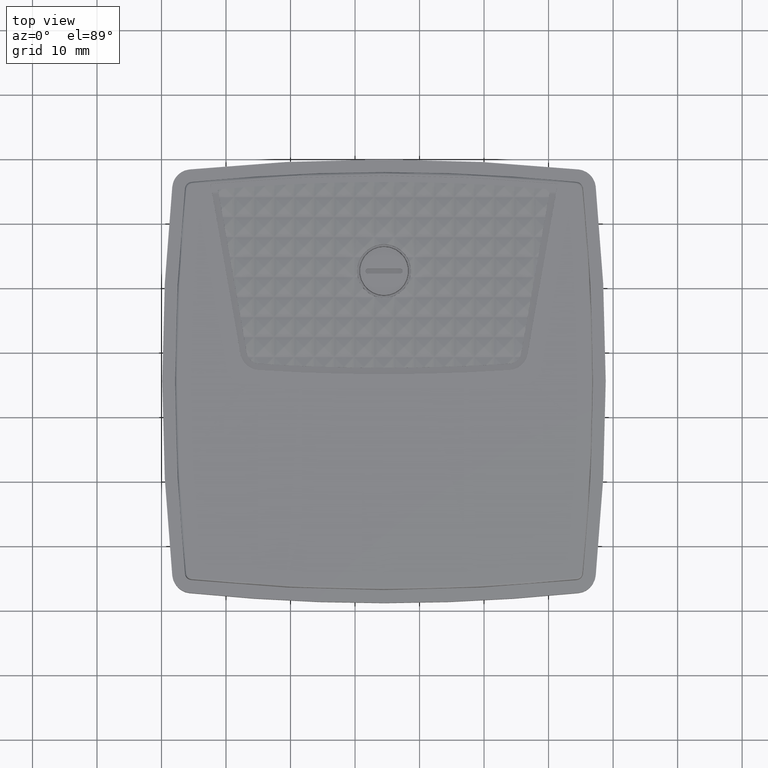
[diagram: clean part render]
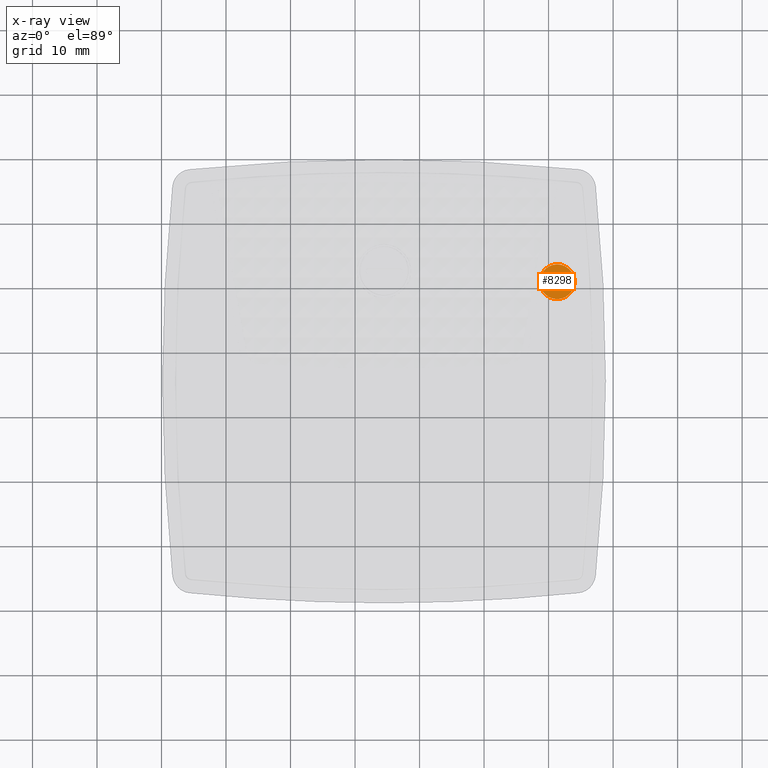
[diagram: x-ray — body ghosted, one internal face saturated and labeled with its STEP entity id]
A machine part, top view, then the same camera in x-ray: the body is ghosted and one INTERNAL B-rep face — a face not visible from any outside direction — is saturated and labeled: STEP entity #8298.
In plain terms, the highlighted planar face has unit normal (0, 0, 1).
Its self-contained STEP definition (entity closure, byte-faithful):
#4712 = DIRECTION ( 'NONE',  ( 0.000000000000000000, 1.000000000000000000, 0.000000000000000000 ) ) ;
#5304 = AXIS2_PLACEMENT_3D ( 'NONE', #12052, #8392, #4712 ) ;
#7202 = EDGE_CURVE ( 'NONE', #40275, #39491, #26445, .T. ) ;
#8298 = ADVANCED_FACE ( 'NONE', ( #39050 ), #42249, .F. ) ;
#8392 = DIRECTION ( 'NONE',  ( 0.000000000000000000, 0.000000000000000000, -1.000000000000000000 ) ) ;
#9104 = DIRECTION ( 'NONE',  ( 0.000000000000000000, 0.000000000000000000, 1.000000000000000000 ) ) ;
#12052 = CARTESIAN_POINT ( 'NONE',  ( 1.627388776049354391, 0.4012325347210511373, 0.07086574803129842837 ) ) ;
#12975 = EDGE_CURVE ( 'NONE', #39491, #40275, #20930, .T. ) ;
#16847 = ORIENTED_EDGE ( 'NONE', *, *, #7202, .T. ) ;
#17582 = CARTESIAN_POINT ( 'NONE',  ( 1.627388776049354391, 0.4012325347210511373, 0.07086574803129842837 ) ) ;
#18584 = AXIS2_PLACEMENT_3D ( 'NONE', #17582, #32565, #47539 ) ;
#20930 = CIRCLE ( 'NONE', #18584, 0.1062992125984380115 ) ;
#23093 = CARTESIAN_POINT ( 'NONE',  ( 1.627388776049354391, 0.4012325347210511373, 0.07086574803150354207 ) ) ;
#25387 = EDGE_LOOP ( 'NONE', ( #16847, #47409 ) ) ;
#26445 = CIRCLE ( 'NONE', #5304, 0.1062992125984380115 ) ;
#30210 = AXIS2_PLACEMENT_3D ( 'NONE', #23093, #9104, #38079 ) ;
#31474 = CARTESIAN_POINT ( 'NONE',  ( 1.627388776049354391, 0.5075317473194891349, 0.07086574803129842837 ) ) ;
#32565 = DIRECTION ( 'NONE',  ( 0.000000000000000000, 0.000000000000000000, -1.000000000000000000 ) ) ;
#35104 = CARTESIAN_POINT ( 'NONE',  ( 1.627388776049354391, 0.2949333221226131396, 0.07086574803129842837 ) ) ;
#38079 = DIRECTION ( 'NONE',  ( 0.000000000000000000, -1.000000000000000000, 0.000000000000000000 ) ) ;
#39050 = FACE_OUTER_BOUND ( 'NONE', #25387, .T. ) ;
#39491 = VERTEX_POINT ( 'NONE', #35104 ) ;
#40275 = VERTEX_POINT ( 'NONE', #31474 ) ;
#42249 = PLANE ( 'NONE',  #30210 ) ;
#47409 = ORIENTED_EDGE ( 'NONE', *, *, #12975, .T. ) ;
#47539 = DIRECTION ( 'NONE',  ( 0.000000000000000000, 1.000000000000000000, 0.000000000000000000 ) ) ;